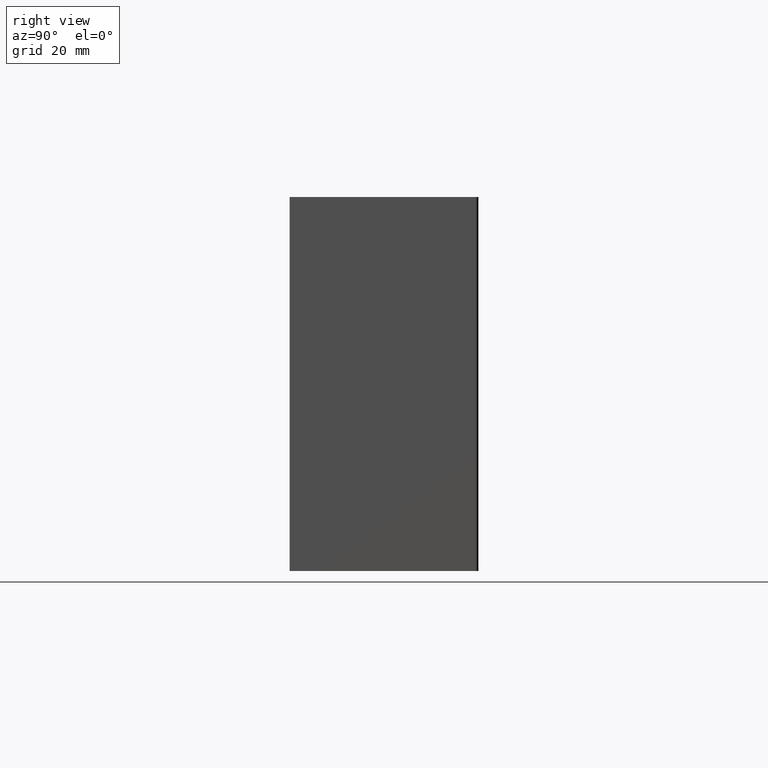
[diagram: clean part render]
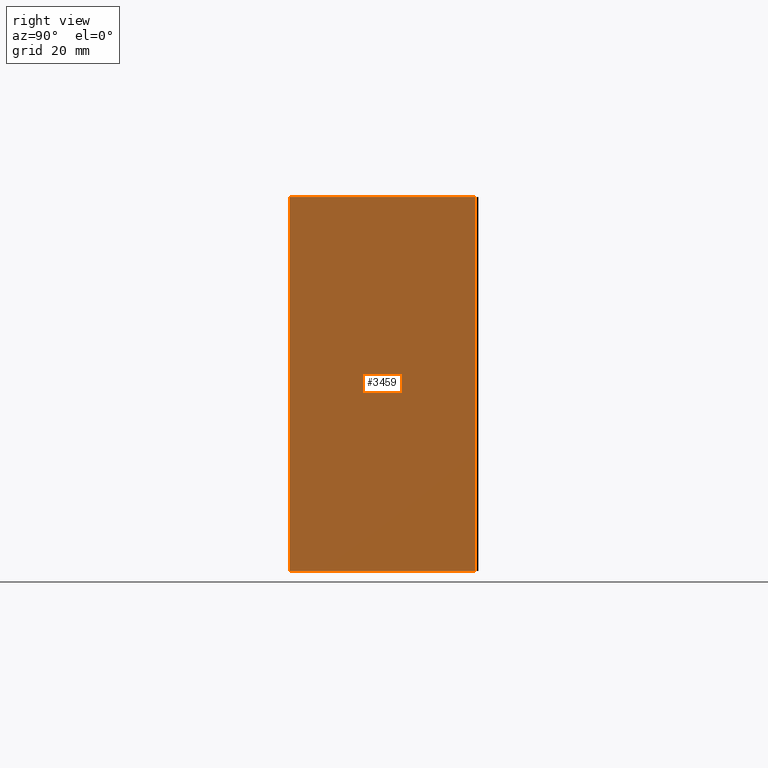
[diagram: same view with one face highlighted and labeled with its STEP entity id]
A machine part, right view. The second image highlights one B-rep face of the part: STEP entity #3459.
In plain terms, the highlighted planar face has unit normal (-1, 0, 0).
Its self-contained STEP definition (entity closure, byte-faithful):
#167 = VECTOR ( 'NONE', #3565, 1000.000000000000000 ) ;
#203 = VERTEX_POINT ( 'NONE', #943 ) ;
#257 = VERTEX_POINT ( 'NONE', #808 ) ;
#304 = PLANE ( 'NONE',  #3969 ) ;
#428 = CARTESIAN_POINT ( 'NONE',  ( 80.15000000000044622, -25.24999999999983658, -50.00000000000000000 ) ) ;
#432 = LINE ( 'NONE', #3936, #167 ) ;
#582 = FACE_OUTER_BOUND ( 'NONE', #3145, .T. ) ;
#612 = DIRECTION ( 'NONE',  ( -0.0000000000000000000, -0.0000000000000000000, -1.000000000000000000 ) ) ;
#743 = VECTOR ( 'NONE', #3571, 1000.000000000000000 ) ;
#808 = CARTESIAN_POINT ( 'NONE',  ( 80.15000000000044622, -25.24999999999983658, 50.00000000000000000 ) ) ;
#840 = VECTOR ( 'NONE', #612, 1000.000000000000000 ) ;
#943 = CARTESIAN_POINT ( 'NONE',  ( 80.15000000000044622, 24.49999999999925748, 50.00000000000000000 ) ) ;
#960 = CARTESIAN_POINT ( 'NONE',  ( 80.15000000000044622, 24.49999999999925748, 50.00000000000000000 ) ) ;
#1073 = LINE ( 'NONE', #1538, #840 ) ;
#1143 = DIRECTION ( 'NONE',  ( 0.0000000000000000000, 1.000000000000000000, 0.0000000000000000000 ) ) ;
#1173 = LINE ( 'NONE', #960, #743 ) ;
#1538 = CARTESIAN_POINT ( 'NONE',  ( 80.15000000000044622, -25.24999999999983658, 50.00000000000000000 ) ) ;
#1612 = CARTESIAN_POINT ( 'NONE',  ( 80.15000000000044622, 24.49999999999925748, -50.00000000000000000 ) ) ;
#1996 = DIRECTION ( 'NONE',  ( 0.0000000000000000000, 0.0000000000000000000, 1.000000000000000000 ) ) ;
#2377 = VERTEX_POINT ( 'NONE', #1612 ) ;
#2396 = CARTESIAN_POINT ( 'NONE',  ( 80.15000000000044622, -25.24999999999983658, -50.00000000000000000 ) ) ;
#2514 = ORIENTED_EDGE ( 'NONE', *, *, #3289, .F. ) ;
#2577 = EDGE_CURVE ( 'NONE', #257, #203, #432, .T. ) ;
#2715 = ORIENTED_EDGE ( 'NONE', *, *, #3262, .T. ) ;
#2765 = ORIENTED_EDGE ( 'NONE', *, *, #2577, .F. ) ;
#2847 = ORIENTED_EDGE ( 'NONE', *, *, #4216, .T. ) ;
#3145 = EDGE_LOOP ( 'NONE', ( #2847, #2514, #2765, #2715 ) ) ;
#3262 = EDGE_CURVE ( 'NONE', #257, #4021, #1073, .T. ) ;
#3289 = EDGE_CURVE ( 'NONE', #203, #2377, #1173, .T. ) ;
#3459 = ADVANCED_FACE ( 'NONE', ( #582 ), #304, .F. ) ;
#3565 = DIRECTION ( 'NONE',  ( 0.0000000000000000000, 1.000000000000000000, 0.0000000000000000000 ) ) ;
#3571 = DIRECTION ( 'NONE',  ( -0.0000000000000000000, -0.0000000000000000000, -1.000000000000000000 ) ) ;
#3614 = CARTESIAN_POINT ( 'NONE',  ( 80.15000000000044622, -25.24999999999983658, 50.00000000000000000 ) ) ;
#3776 = VECTOR ( 'NONE', #1143, 1000.000000000000000 ) ;
#3862 = LINE ( 'NONE', #428, #3776 ) ;
#3936 = CARTESIAN_POINT ( 'NONE',  ( 80.15000000000044622, -25.24999999999983658, 50.00000000000000000 ) ) ;
#3969 = AXIS2_PLACEMENT_3D ( 'NONE', #3614, #4305, #1996 ) ;
#4021 = VERTEX_POINT ( 'NONE', #2396 ) ;
#4216 = EDGE_CURVE ( 'NONE', #4021, #2377, #3862, .T. ) ;
#4305 = DIRECTION ( 'NONE',  ( -1.000000000000000000, 0.0000000000000000000, 0.0000000000000000000 ) ) ;